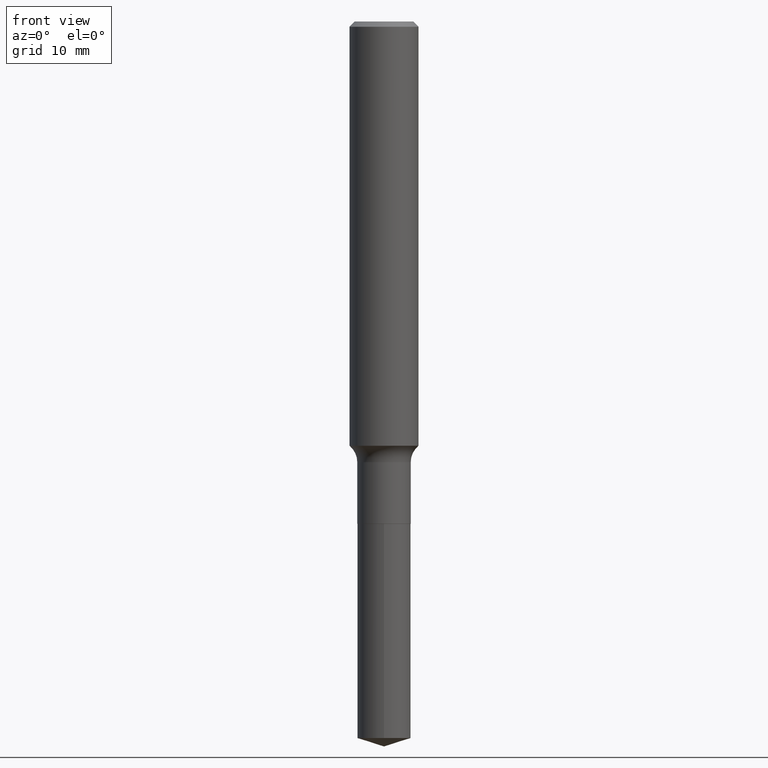
[diagram: clean part render]
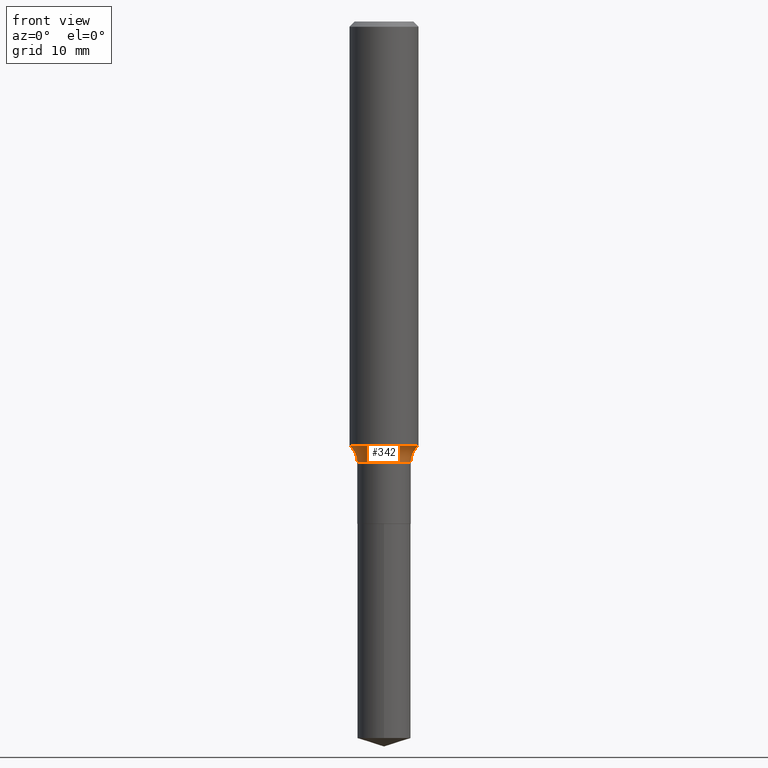
[diagram: same view with one face highlighted and labeled with its STEP entity id]
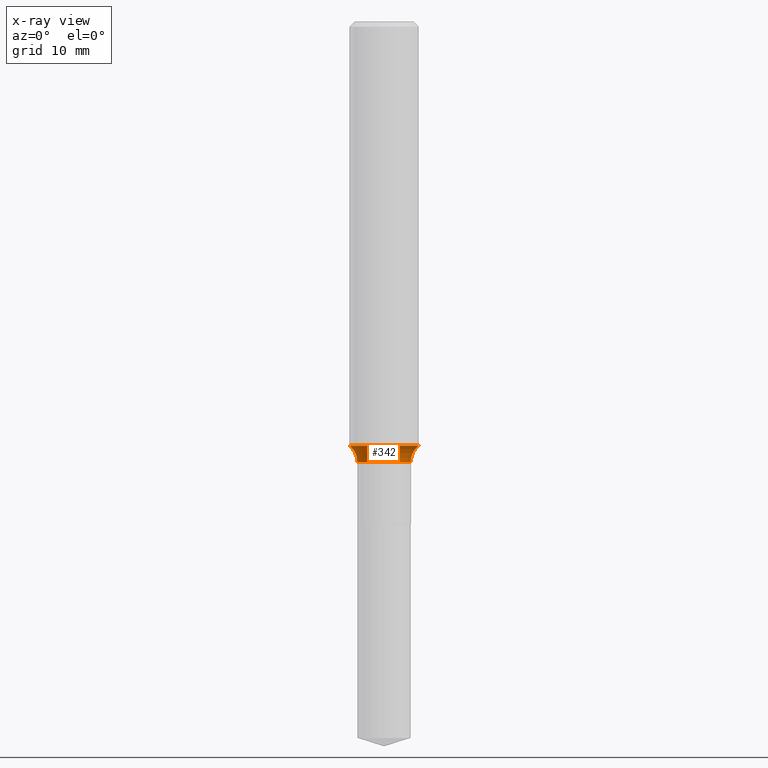
[diagram: x-ray of the same camera — body ghosted, the highlighted face saturated]
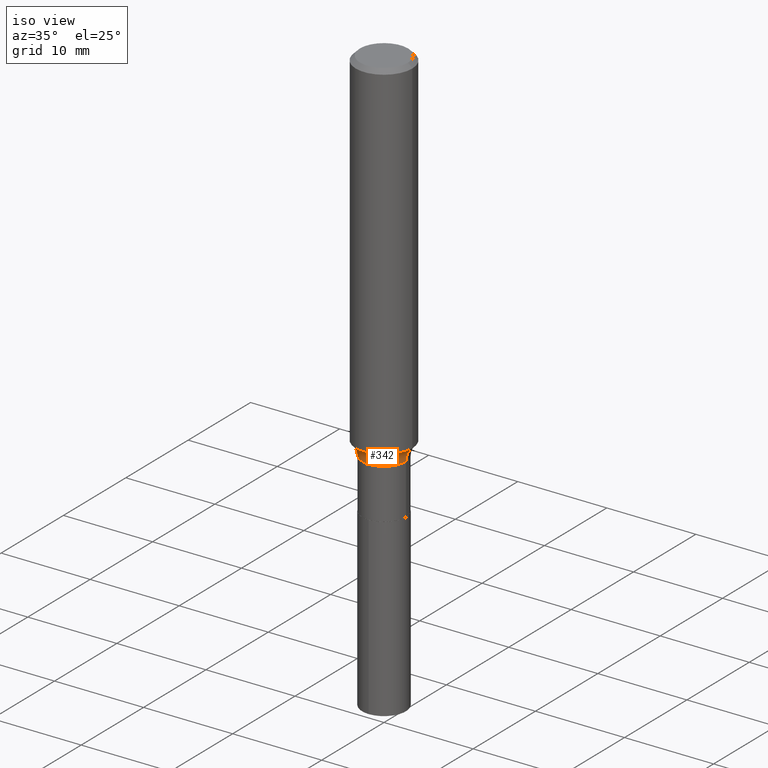
[diagram: same view with one face highlighted and labeled with its STEP entity id]
A machine part, front view. The second image highlights one B-rep face of the part: STEP entity #342.
The next image is the same camera in x-ray: the body ghosted, the highlighted face saturated — about 0% of this face is hidden behind the body in this view.
A second angle (iso view) of the same face is appended — the face is thin or edge-on in the first view.
In plain terms, the highlighted toroidal blend (fillet) surface has major radius 4.4386 mm and minor (blend) radius 1.9812 mm.
Its self-contained STEP definition (entity closure, byte-faithful):
#4 = VERTEX_POINT ( 'NONE', #309 ) ;
#16 = AXIS2_PLACEMENT_3D ( 'NONE', #57, #143, #209 ) ;
#18 = AXIS2_PLACEMENT_3D ( 'NONE', #191, #295, #447 ) ;
#45 = ORIENTED_EDGE ( 'NONE', *, *, #49, .F. ) ;
#49 = EDGE_CURVE ( 'NONE', #393, #170, #471, .T. ) ;
#57 = CARTESIAN_POINT ( 'NONE',  ( 3.902968214671478497E-29, -5.572404216793660273E-15, -1.596000000000000085 ) ) ;
#70 = DIRECTION ( 'NONE',  ( -2.445468806185136597E-29, 3.491481338843145583E-15, 1.000000000000000000 ) ) ;
#99 = AXIS2_PLACEMENT_3D ( 'NONE', #399, #204, #140 ) ;
#109 = EDGE_CURVE ( 'NONE', #4, #466, #200, .T. ) ;
#113 = CARTESIAN_POINT ( 'NONE',  ( -0.1250000000000001388, -4.474477035340341246E-15, -1.535925567002259795 ) ) ;
#127 = EDGE_CURVE ( 'NONE', #170, #466, #261, .T. ) ;
#140 = DIRECTION ( 'NONE',  ( 1.000000000000000000, -6.982962677686261977E-15, 0.000000000000000000 ) ) ;
#143 = DIRECTION ( 'NONE',  ( -2.445468806185136597E-29, 3.491481338843145583E-15, 1.000000000000000000 ) ) ;
#152 = CARTESIAN_POINT ( 'NONE',  ( 3.902968214671478497E-29, -5.572404216793660273E-15, -1.596000000000000085 ) ) ;
#156 = CIRCLE ( 'NONE', #18, 0.07799999999999995826 ) ;
#170 = VERTEX_POINT ( 'NONE', #352 ) ;
#181 = DIRECTION ( 'NONE',  ( -2.445468806185136597E-29, 3.491481338843145583E-15, 1.000000000000000000 ) ) ;
#191 = CARTESIAN_POINT ( 'NONE',  ( -0.1747499999999999609, -4.330730786052885475E-15, -1.596000000000000085 ) ) ;
#200 = CIRCLE ( 'NONE', #16, 0.09674999999999996103 ) ;
#204 = DIRECTION ( 'NONE',  ( -6.982962677686266711E-15, -1.000000000000000000, 3.491481338843145583E-15 ) ) ;
#209 = DIRECTION ( 'NONE',  ( 1.000000000000000000, -6.982962677686267499E-15, 0.000000000000000000 ) ) ;
#230 = ORIENTED_EDGE ( 'NONE', *, *, #109, .T. ) ;
#261 = CIRCLE ( 'NONE', #99, 0.07799999999999995826 ) ;
#295 = DIRECTION ( 'NONE',  ( 7.105427357601001859E-15, 1.000000000000000000, -3.491481338843145583E-15 ) ) ;
#309 = CARTESIAN_POINT ( 'NONE',  ( -0.09674999999999996103, -5.272508548557352893E-15, -1.596000000000000085 ) ) ;
#336 = DIRECTION ( 'NONE',  ( 1.000000000000000000, -6.982962677686266711E-15, 4.883557194083112901E-29 ) ) ;
#342 = ADVANCED_FACE ( 'NONE', ( #379 ), #479, .F. ) ;
#346 = ORIENTED_EDGE ( 'NONE', *, *, #425, .T. ) ;
#352 = CARTESIAN_POINT ( 'NONE',  ( 0.1250000000000001388, -6.235525789751252183E-15, -1.535925567002259795 ) ) ;
#369 = CARTESIAN_POINT ( 'NONE',  ( 3.756058062726244785E-29, -5.362655455040467267E-15, -1.535925567002259795 ) ) ;
#379 = FACE_OUTER_BOUND ( 'NONE', #383, .T. ) ;
#383 = EDGE_LOOP ( 'NONE', ( #45, #346, #230, #398 ) ) ;
#393 = VERTEX_POINT ( 'NONE', #113 ) ;
#398 = ORIENTED_EDGE ( 'NONE', *, *, #127, .F. ) ;
#399 = CARTESIAN_POINT ( 'NONE',  ( 0.1747499999999999609, -6.792676944719336232E-15, -1.596000000000000085 ) ) ;
#402 = AXIS2_PLACEMENT_3D ( 'NONE', #152, #70, #336 ) ;
#425 = EDGE_CURVE ( 'NONE', #393, #4, #156, .T. ) ;
#432 = AXIS2_PLACEMENT_3D ( 'NONE', #369, #181, #485 ) ;
#447 = DIRECTION ( 'NONE',  ( -1.000000000000000000, 7.105427357601001859E-15, 0.000000000000000000 ) ) ;
#452 = CARTESIAN_POINT ( 'NONE',  ( 0.09674999999999996103, -6.248005855859806608E-15, -1.596000000000000085 ) ) ;
#466 = VERTEX_POINT ( 'NONE', #452 ) ;
#471 = CIRCLE ( 'NONE', #432, 0.1250000000000001665 ) ;
#479 = TOROIDAL_SURFACE ( 'NONE', #402, 0.1747499999999999609, 0.07799999999999994438 ) ;
#485 = DIRECTION ( 'NONE',  ( 1.000000000000000000, -6.982962677686269077E-15, 0.000000000000000000 ) ) ;